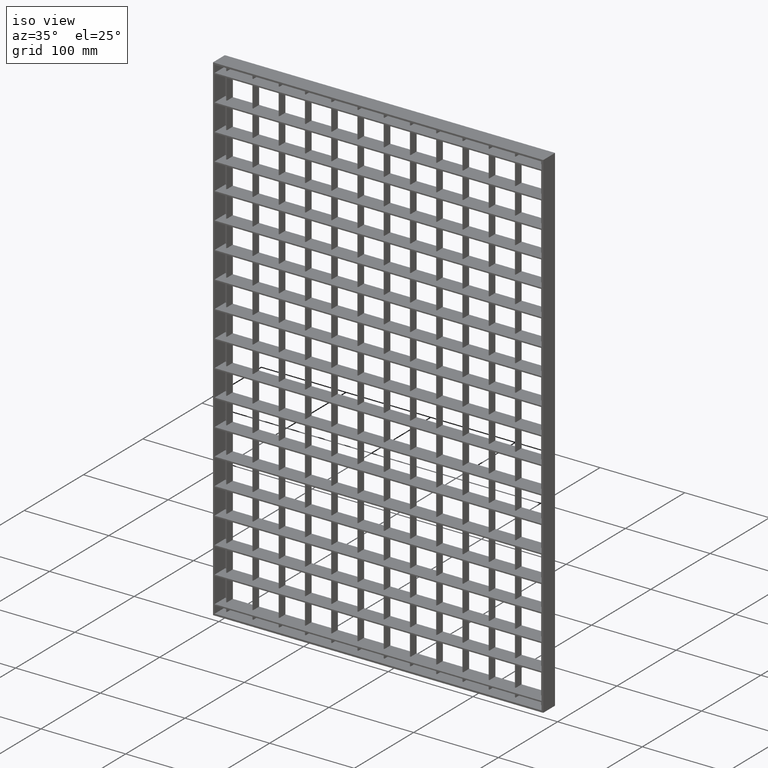
[diagram: clean part render]
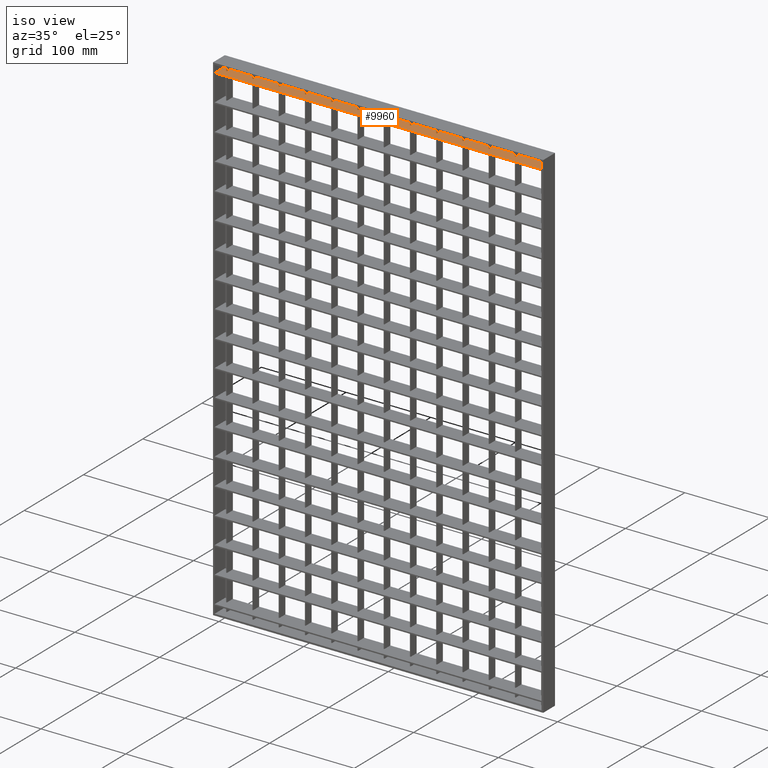
[diagram: same view with one face highlighted and labeled with its STEP entity id]
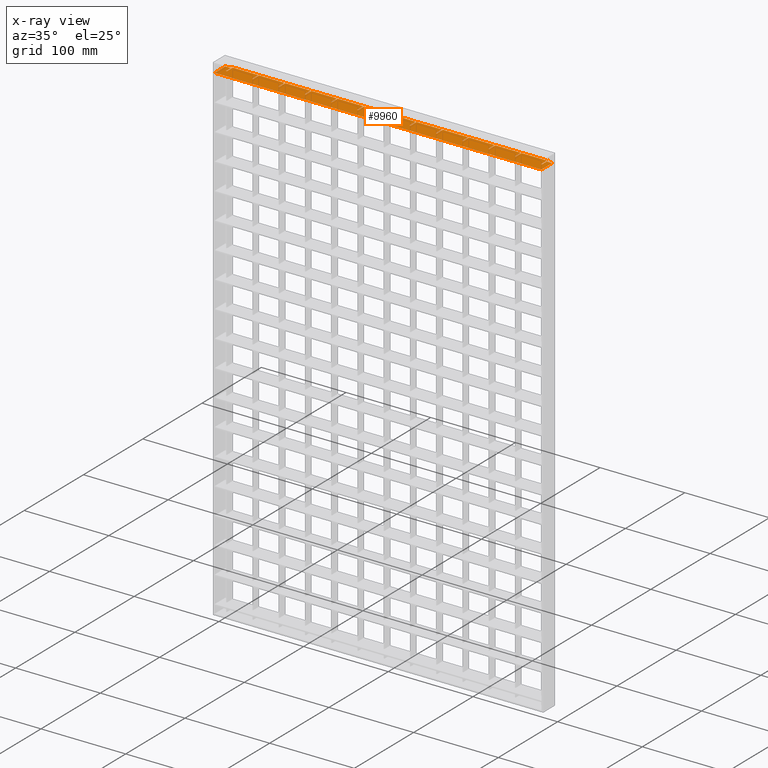
[diagram: x-ray of the same camera — body ghosted, the highlighted face saturated]
A machine part, iso view. The second image highlights one B-rep face of the part: STEP entity #9960.
The next image is the same camera in x-ray: the body ghosted, the highlighted face saturated — about 0% of this face is hidden behind the body in this view.
In plain terms, the highlighted planar face has unit normal (0, 0, 1).
Its self-contained STEP definition (entity closure, byte-faithful):
#109 = ORIENTED_EDGE ( 'NONE', *, *, #37872, .F. ) ;
#149 = CARTESIAN_POINT ( 'NONE',  ( 350.5000000000000600, 7.001226303889181300E-016, -10.75000000000036900 ) ) ;
#165 = VERTEX_POINT ( 'NONE', #1071 ) ;
#292 = EDGE_CURVE ( 'NONE', #25686, #23565, #673, .T. ) ;
#351 = DIRECTION ( 'NONE',  ( 0.0000000000000000000, -1.000000000000000000, 0.0000000000000000000 ) ) ;
#380 = EDGE_CURVE ( 'NONE', #26442, #22357, #1657, .T. ) ;
#557 = LINE ( 'NONE', #32736, #17046 ) ;
#673 = LINE ( 'NONE', #17179, #10888 ) ;
#729 = DIRECTION ( 'NONE',  ( 1.000000000000000000, 3.061616997868381200E-016, -0.0000000000000000000 ) ) ;
#732 = EDGE_CURVE ( 'NONE', #28731, #33677, #19066, .T. ) ;
#798 = EDGE_CURVE ( 'NONE', #15095, #38677, #4437, .T. ) ;
#899 = LINE ( 'NONE', #34717, #22705 ) ;
#964 = LINE ( 'NONE', #36871, #1449 ) ;
#1071 = CARTESIAN_POINT ( 'NONE',  ( 164.5000000000000000, 0.0000000000000000000, -10.75000000000036900 ) ) ;
#1139 = CARTESIAN_POINT ( 'NONE',  ( 408.0561711201316400, 10.00000000000012100, -10.75000000000036900 ) ) ;
#1159 = VECTOR ( 'NONE', #22642, 1000.000000000000000 ) ;
#1185 = LINE ( 'NONE', #2422, #7495 ) ;
#1271 = VECTOR ( 'NONE', #7424, 1000.000000000000000 ) ;
#1310 = CARTESIAN_POINT ( 'NONE',  ( 71.50000000000001400, 10.00000000000002000, -10.75000000000036900 ) ) ;
#1319 = CARTESIAN_POINT ( 'NONE',  ( 40.50000000000003600, 10.00000000000000900, -10.75000000000036900 ) ) ;
#1322 = CARTESIAN_POINT ( 'NONE',  ( 256.5000000000000600, -9.999999999999879200, -10.75000000000036900 ) ) ;
#1411 = EDGE_CURVE ( 'NONE', #31392, #11502, #34943, .T. ) ;
#1449 = VECTOR ( 'NONE', #21073, 1000.000000000000000 ) ;
#1451 = VERTEX_POINT ( 'NONE', #22361 ) ;
#1544 = VERTEX_POINT ( 'NONE', #32517 ) ;
#1588 = EDGE_CURVE ( 'NONE', #1544, #39421, #33493, .T. ) ;
#1657 = LINE ( 'NONE', #30410, #32657 ) ;
#1722 = ORIENTED_EDGE ( 'NONE', *, *, #22740, .F. ) ;
#1759 = EDGE_CURVE ( 'NONE', #34805, #13512, #13140, .T. ) ;
#1832 = LINE ( 'NONE', #39855, #30889 ) ;
#1926 = ORIENTED_EDGE ( 'NONE', *, *, #6521, .F. ) ;
#2040 = DIRECTION ( 'NONE',  ( -0.0000000000000000000, 1.000000000000000000, 0.0000000000000000000 ) ) ;
#2092 = VECTOR ( 'NONE', #20824, 1000.000000000000000 ) ;
#2234 = ORIENTED_EDGE ( 'NONE', *, *, #15915, .T. ) ;
#2239 = VECTOR ( 'NONE', #25596, 1000.000000000000000 ) ;
#2422 = CARTESIAN_POINT ( 'NONE',  ( 408.0561711201316400, 7.632783294297951200E-014, -10.75000000000036900 ) ) ;
#2434 = AXIS2_PLACEMENT_3D ( 'NONE', #33782, #36996, #18602 ) ;
#2567 = DIRECTION ( 'NONE',  ( 0.0000000000000000000, 1.000000000000000000, -0.0000000000000000000 ) ) ;
#2625 = VERTEX_POINT ( 'NONE', #4549 ) ;
#2657 = CARTESIAN_POINT ( 'NONE',  ( 164.5000000000000000, -9.999999999999879200, -10.75000000000036900 ) ) ;
#2664 = VERTEX_POINT ( 'NONE', #13475 ) ;
#2687 = CARTESIAN_POINT ( 'NONE',  ( 102.5000000000000300, 10.00000000000002800, -10.75000000000036900 ) ) ;
#2734 = CARTESIAN_POINT ( 'NONE',  ( 381.5000000000000600, 10.00000000000000200, -10.75000000000036900 ) ) ;
#2854 = VECTOR ( 'NONE', #15825, 1000.000000000000000 ) ;
#2878 = EDGE_CURVE ( 'NONE', #6752, #37761, #899, .T. ) ;
#3025 = CARTESIAN_POINT ( 'NONE',  ( 225.5000000000000300, -9.999999999999879200, -10.75000000000036900 ) ) ;
#3193 = CARTESIAN_POINT ( 'NONE',  ( 387.9999999999999400, 8.000000000000001800, -10.75000000000036900 ) ) ;
#3440 = ORIENTED_EDGE ( 'NONE', *, *, #380, .T. ) ;
#3489 = VERTEX_POINT ( 'NONE', #12207 ) ;
#3519 = ORIENTED_EDGE ( 'NONE', *, *, #732, .T. ) ;
#3557 = ORIENTED_EDGE ( 'NONE', *, *, #20865, .F. ) ;
#3615 = CARTESIAN_POINT ( 'NONE',  ( 7.999999999999996400, 10.00000000000000200, -10.75000000000036900 ) ) ;
#3733 = DIRECTION ( 'NONE',  ( -1.000000000000000000, -3.061616997868382200E-016, 0.0000000000000000000 ) ) ;
#3742 = DIRECTION ( 'NONE',  ( -1.000000000000000000, 0.0000000000000000000, 0.0000000000000000000 ) ) ;
#3891 = LINE ( 'NONE', #24891, #27652 ) ;
#3920 = LINE ( 'NONE', #33435, #25246 ) ;
#4006 = EDGE_CURVE ( 'NONE', #8032, #9717, #16286, .T. ) ;
#4145 = CARTESIAN_POINT ( 'NONE',  ( 408.0561711201316400, 6.765421556309547700E-014, -10.75000000000036900 ) ) ;
#4333 = CARTESIAN_POINT ( 'NONE',  ( 101.5000000000000000, 10.00000000000000200, -10.75000000000036900 ) ) ;
#4345 = CARTESIAN_POINT ( 'NONE',  ( 318.5000000000000000, 10.00000000000009400, -10.75000000000036900 ) ) ;
#4437 = LINE ( 'NONE', #28352, #25753 ) ;
#4512 = LINE ( 'NONE', #14355, #25312 ) ;
#4549 = CARTESIAN_POINT ( 'NONE',  ( 380.5000000000000600, 10.00000000000011400, -10.75000000000036900 ) ) ;
#4650 = DIRECTION ( 'NONE',  ( -0.0000000000000000000, -1.000000000000000000, 0.0000000000000000000 ) ) ;
#4658 = ORIENTED_EDGE ( 'NONE', *, *, #33958, .T. ) ;
#4659 = LINE ( 'NONE', #7324, #2239 ) ;
#4664 = LINE ( 'NONE', #32516, #20162 ) ;
#4673 = EDGE_CURVE ( 'NONE', #8410, #35717, #17083, .T. ) ;
#4719 = CARTESIAN_POINT ( 'NONE',  ( 408.0561711201316400, -3.469446951953614200E-014, -10.75000000000036900 ) ) ;
#4828 = ORIENTED_EDGE ( 'NONE', *, *, #4673, .T. ) ;
#4992 = ORIENTED_EDGE ( 'NONE', *, *, #27998, .F. ) ;
#5287 = CARTESIAN_POINT ( 'NONE',  ( 195.5000000000000000, 0.0000000000000000000, -10.75000000000036900 ) ) ;
#5462 = VECTOR ( 'NONE', #29913, 1000.000000000000000 ) ;
#5473 = VECTOR ( 'NONE', #39093, 1000.000000000000000 ) ;
#5550 = VECTOR ( 'NONE', #26364, 1000.000000000000000 ) ;
#5728 = ORIENTED_EDGE ( 'NONE', *, *, #4006, .T. ) ;
#5748 = CARTESIAN_POINT ( 'NONE',  ( 288.5000000000001100, 10.00000000000000200, -10.75000000000036900 ) ) ;
#6208 = DIRECTION ( 'NONE',  ( 1.000000000000000000, 3.061616997868381200E-016, -0.0000000000000000000 ) ) ;
#6231 = EDGE_CURVE ( 'NONE', #8050, #25490, #30787, .T. ) ;
#6263 = LINE ( 'NONE', #10116, #28013 ) ;
#6329 = CARTESIAN_POINT ( 'NONE',  ( 101.4999999999999900, 1.554032748440066200E-015, -10.75000000000036900 ) ) ;
#6519 = CARTESIAN_POINT ( 'NONE',  ( 71.50000000000001400, -9.999999999999879200, -10.75000000000036900 ) ) ;
#6521 = EDGE_CURVE ( 'NONE', #2664, #38302, #35644, .T. ) ;
#6662 = VECTOR ( 'NONE', #36798, 1000.000000000000000 ) ;
#6712 = EDGE_CURVE ( 'NONE', #3489, #34122, #15741, .T. ) ;
#6752 = VERTEX_POINT ( 'NONE', #32312 ) ;
#6756 = EDGE_CURVE ( 'NONE', #8032, #28773, #27862, .T. ) ;
#6941 = LINE ( 'NONE', #19979, #26808 ) ;
#7124 = ORIENTED_EDGE ( 'NONE', *, *, #292, .T. ) ;
#7184 = VERTEX_POINT ( 'NONE', #23241 ) ;
#7324 = CARTESIAN_POINT ( 'NONE',  ( 408.0561711201316400, 10.00000000000012100, -10.75000000000036900 ) ) ;
#7382 = DIRECTION ( 'NONE',  ( -1.000000000000000000, -3.061616997868382200E-016, 0.0000000000000000000 ) ) ;
#7422 = CARTESIAN_POINT ( 'NONE',  ( 408.0561711201316400, 10.00000000000012100, -10.75000000000036900 ) ) ;
#7424 = DIRECTION ( 'NONE',  ( 0.0000000000000000000, -1.000000000000000000, 0.0000000000000000000 ) ) ;
#7436 = LINE ( 'NONE', #36481, #10353 ) ;
#7484 = LINE ( 'NONE', #16454, #13265 ) ;
#7492 = CARTESIAN_POINT ( 'NONE',  ( 7.999999999999996400, 8.000000000000001800, -10.75000000000036900 ) ) ;
#7495 = VECTOR ( 'NONE', #14728, 1000.000000000000000 ) ;
#7547 = DIRECTION ( 'NONE',  ( -1.000000000000000000, -3.061616997868382200E-016, 0.0000000000000000000 ) ) ;
#7694 = EDGE_CURVE ( 'NONE', #7732, #9544, #38921, .T. ) ;
#7732 = VERTEX_POINT ( 'NONE', #22505 ) ;
#7782 = VECTOR ( 'NONE', #7382, 1000.000000000000000 ) ;
#7848 = CARTESIAN_POINT ( 'NONE',  ( 102.4999999999999900, 0.0000000000000000000, -10.75000000000036900 ) ) ;
#8032 = VERTEX_POINT ( 'NONE', #4333 ) ;
#8050 = VERTEX_POINT ( 'NONE', #7848 ) ;
#8146 = LINE ( 'NONE', #7422, #26043 ) ;
#8245 = EDGE_CURVE ( 'NONE', #34805, #35431, #11325, .T. ) ;
#8364 = EDGE_CURVE ( 'NONE', #2625, #11458, #7436, .T. ) ;
#8410 = VERTEX_POINT ( 'NONE', #22003 ) ;
#8456 = ORIENTED_EDGE ( 'NONE', *, *, #24021, .F. ) ;
#8486 = VERTEX_POINT ( 'NONE', #22136 ) ;
#8536 = CARTESIAN_POINT ( 'NONE',  ( 195.5000000000000000, 10.00000000000005500, -10.75000000000036900 ) ) ;
#8552 = CARTESIAN_POINT ( 'NONE',  ( 2.000000000000003600, 8.000000000000001800, -10.75000000000036900 ) ) ;
#8567 = VECTOR ( 'NONE', #19448, 1000.000000000000000 ) ;
#8676 = EDGE_CURVE ( 'NONE', #23059, #7184, #20487, .T. ) ;
#8729 = CARTESIAN_POINT ( 'NONE',  ( 225.5000000000000300, 1.006284330175756500E-015, -10.75000000000036900 ) ) ;
#8732 = FACE_OUTER_BOUND ( 'NONE', #18146, .T. ) ;
#8831 = CARTESIAN_POINT ( 'NONE',  ( 132.5000000000000000, -9.999999999999879200, -10.75000000000036900 ) ) ;
#8962 = CARTESIAN_POINT ( 'NONE',  ( 9.500000000000008900, -9.999999999999879200, -10.75000000000036900 ) ) ;
#9254 = EDGE_CURVE ( 'NONE', #23274, #35938, #3920, .T. ) ;
#9303 = PLANE ( 'NONE',  #2434 ) ;
#9351 = VECTOR ( 'NONE', #12584, 1000.000000000000000 ) ;
#9422 = DIRECTION ( 'NONE',  ( 0.0000000000000000000, -1.000000000000000000, 0.0000000000000000000 ) ) ;
#9430 = CARTESIAN_POINT ( 'NONE',  ( 9.500000000000008900, 0.0000000000000000000, -10.75000000000036900 ) ) ;
#9450 = ORIENTED_EDGE ( 'NONE', *, *, #7694, .T. ) ;
#9508 = ORIENTED_EDGE ( 'NONE', *, *, #15801, .T. ) ;
#9544 = VERTEX_POINT ( 'NONE', #34870 ) ;
#9620 = CARTESIAN_POINT ( 'NONE',  ( 319.5000000000000000, 10.00000000000000200, -10.75000000000036900 ) ) ;
#9685 = ORIENTED_EDGE ( 'NONE', *, *, #32531, .T. ) ;
#9705 = LINE ( 'NONE', #3025, #13098 ) ;
#9717 = VERTEX_POINT ( 'NONE', #1310 ) ;
#9742 = CARTESIAN_POINT ( 'NONE',  ( 226.5000000000000300, 7.001226303889181300E-016, -10.75000000000036900 ) ) ;
#9947 = DIRECTION ( 'NONE',  ( -0.0000000000000000000, 1.000000000000000000, 0.0000000000000000000 ) ) ;
#9960 = ADVANCED_FACE ( 'NONE', ( #8732 ), #9303, .T. ) ;
#10071 = LINE ( 'NONE', #12295, #28416 ) ;
#10116 = CARTESIAN_POINT ( 'NONE',  ( 408.0561711201316400, 8.500145032286354800E-014, -10.75000000000036900 ) ) ;
#10283 = ORIENTED_EDGE ( 'NONE', *, *, #11516, .T. ) ;
#10333 = ORIENTED_EDGE ( 'NONE', *, *, #18586, .T. ) ;
#10353 = VECTOR ( 'NONE', #27278, 1000.000000000000000 ) ;
#10385 = DIRECTION ( 'NONE',  ( -0.0000000000000000000, 1.000000000000000000, 0.0000000000000000000 ) ) ;
#10415 = ORIENTED_EDGE ( 'NONE', *, *, #21695, .F. ) ;
#10524 = CARTESIAN_POINT ( 'NONE',  ( 408.0561711201316400, -1.561251128379126400E-014, -10.75000000000036900 ) ) ;
#10609 = DIRECTION ( 'NONE',  ( -1.000000000000000000, 3.061616997868381200E-016, 0.0000000000000000000 ) ) ;
#10888 = VECTOR ( 'NONE', #39339, 1000.000000000000000 ) ;
#11307 = CARTESIAN_POINT ( 'NONE',  ( 8.500000000000007100, 8.365702838930499200E-016, -10.75000000000036900 ) ) ;
#11325 = LINE ( 'NONE', #35826, #2092 ) ;
#11342 = LINE ( 'NONE', #1322, #18115 ) ;
#11458 = VERTEX_POINT ( 'NONE', #25971 ) ;
#11502 = VERTEX_POINT ( 'NONE', #26097 ) ;
#11516 = EDGE_CURVE ( 'NONE', #37437, #33024, #8146, .T. ) ;
#11624 = DIRECTION ( 'NONE',  ( -1.000000000000000000, -3.061616997868382200E-016, 0.0000000000000000000 ) ) ;
#11729 = CARTESIAN_POINT ( 'NONE',  ( 408.0561711201316400, 10.00000000000012100, -10.75000000000036900 ) ) ;
#11754 = CARTESIAN_POINT ( 'NONE',  ( 7.999999999999996400, 8.000000000000001800, -10.75000000000036900 ) ) ;
#11924 = LINE ( 'NONE', #30751, #25982 ) ;
#12095 = DIRECTION ( 'NONE',  ( -1.000000000000000000, -3.061616997868382200E-016, 0.0000000000000000000 ) ) ;
#12207 = CARTESIAN_POINT ( 'NONE',  ( 388.0000000000000600, -10.00000000000000400, -10.75000000000036900 ) ) ;
#12295 = CARTESIAN_POINT ( 'NONE',  ( 408.0561711201316400, 1.144917494144692700E-013, -10.75000000000036900 ) ) ;
#12557 = CARTESIAN_POINT ( 'NONE',  ( 163.5000000000000000, 1.454099899479157900E-015, -10.75000000000036900 ) ) ;
#12584 = DIRECTION ( 'NONE',  ( -0.0000000000000000000, 1.000000000000000000, 0.0000000000000000000 ) ) ;
#12736 = VERTEX_POINT ( 'NONE', #32982 ) ;
#12746 = EDGE_CURVE ( 'NONE', #38553, #1451, #32195, .T. ) ;
#12800 = EDGE_CURVE ( 'NONE', #165, #35431, #15710, .T. ) ;
#12803 = LINE ( 'NONE', #18185, #35076 ) ;
#13020 = DIRECTION ( 'NONE',  ( 0.0000000000000000000, -1.000000000000000000, 0.0000000000000000000 ) ) ;
#13098 = VECTOR ( 'NONE', #9947, 1000.000000000000000 ) ;
#13125 = CARTESIAN_POINT ( 'NONE',  ( 382.0000000000000600, 8.000000000000001800, -10.75000000000036900 ) ) ;
#13140 = LINE ( 'NONE', #21267, #25724 ) ;
#13196 = CARTESIAN_POINT ( 'NONE',  ( 408.0561711201316400, 9.540979117872439000E-014, -10.75000000000036900 ) ) ;
#13265 = VECTOR ( 'NONE', #22688, 1000.000000000000000 ) ;
#13290 = VERTEX_POINT ( 'NONE', #8729 ) ;
#13356 = LINE ( 'NONE', #19050, #25010 ) ;
#13358 = CARTESIAN_POINT ( 'NONE',  ( 382.0000000000000600, 10.00000000000000400, -10.75000000000036900 ) ) ;
#13475 = CARTESIAN_POINT ( 'NONE',  ( 8.500000000000007100, 10.00000000000000200, -10.75000000000036900 ) ) ;
#13512 = VERTEX_POINT ( 'NONE', #18301 ) ;
#13566 = EDGE_CURVE ( 'NONE', #11458, #33350, #39360, .T. ) ;
#13857 = EDGE_CURVE ( 'NONE', #36915, #38553, #4512, .T. ) ;
#13957 = VERTEX_POINT ( 'NONE', #5287 ) ;
#14210 = EDGE_CURVE ( 'NONE', #30986, #6752, #15585, .T. ) ;
#14355 = CARTESIAN_POINT ( 'NONE',  ( 381.5000000000000600, -9.999999999999879200, -10.75000000000036900 ) ) ;
#14453 = CARTESIAN_POINT ( 'NONE',  ( 288.5000000000001100, 7.001226303889181300E-016, -10.75000000000036900 ) ) ;
#14600 = VECTOR ( 'NONE', #10609, 1000.000000000000000 ) ;
#14627 = DIRECTION ( 'NONE',  ( 0.0000000000000000000, -1.000000000000000000, 0.0000000000000000000 ) ) ;
#14728 = DIRECTION ( 'NONE',  ( 1.000000000000000000, 3.061616997868381200E-016, -0.0000000000000000000 ) ) ;
#14859 = EDGE_CURVE ( 'NONE', #33677, #34122, #557, .T. ) ;
#15054 = VECTOR ( 'NONE', #34196, 1000.000000000000000 ) ;
#15095 = VERTEX_POINT ( 'NONE', #15505 ) ;
#15113 = ORIENTED_EDGE ( 'NONE', *, *, #2878, .T. ) ;
#15293 = VERTEX_POINT ( 'NONE', #12557 ) ;
#15452 = VECTOR ( 'NONE', #22650, 1000.000000000000000 ) ;
#15459 = ORIENTED_EDGE ( 'NONE', *, *, #25589, .T. ) ;
#15505 = CARTESIAN_POINT ( 'NONE',  ( 40.50000000000003600, 0.0000000000000000000, -10.75000000000036900 ) ) ;
#15509 = ORIENTED_EDGE ( 'NONE', *, *, #19070, .T. ) ;
#15585 = LINE ( 'NONE', #30844, #9351 ) ;
#15618 = ORIENTED_EDGE ( 'NONE', *, *, #19915, .T. ) ;
#15710 = LINE ( 'NONE', #2657, #36065 ) ;
#15741 = LINE ( 'NONE', #35159, #25435 ) ;
#15801 = EDGE_CURVE ( 'NONE', #9544, #31410, #29017, .T. ) ;
#15825 = DIRECTION ( 'NONE',  ( -0.0000000000000000000, 1.000000000000000000, 0.0000000000000000000 ) ) ;
#15915 = EDGE_CURVE ( 'NONE', #13290, #8410, #9705, .T. ) ;
#15945 = ORIENTED_EDGE ( 'NONE', *, *, #20262, .T. ) ;
#16286 = LINE ( 'NONE', #27038, #23071 ) ;
#16334 = VECTOR ( 'NONE', #14627, 1000.000000000000000 ) ;
#16382 = EDGE_CURVE ( 'NONE', #26207, #12736, #26076, .T. ) ;
#16452 = CARTESIAN_POINT ( 'NONE',  ( 408.0561711201316400, 1.040834085586084300E-013, -10.75000000000036900 ) ) ;
#16454 = CARTESIAN_POINT ( 'NONE',  ( 195.5000000000000000, -9.999999999999879200, -10.75000000000036900 ) ) ;
#16737 = DIRECTION ( 'NONE',  ( -1.000000000000000000, -3.061616997868382200E-016, 0.0000000000000000000 ) ) ;
#17046 = VECTOR ( 'NONE', #26388, 1000.000000000000000 ) ;
#17083 = LINE ( 'NONE', #11729, #28197 ) ;
#17179 = CARTESIAN_POINT ( 'NONE',  ( 408.0561711201316400, -2.602085213965210600E-014, -10.75000000000036900 ) ) ;
#17319 = CARTESIAN_POINT ( 'NONE',  ( 194.5000000000000000, 10.00000000000000200, -10.75000000000036900 ) ) ;
#17337 = ORIENTED_EDGE ( 'NONE', *, *, #1759, .F. ) ;
#17347 = CARTESIAN_POINT ( 'NONE',  ( 39.50000000000003600, -9.999999999999879200, -10.75000000000036900 ) ) ;
#17636 = CARTESIAN_POINT ( 'NONE',  ( 39.49999999999997900, 1.653965597400974600E-015, -10.75000000000036900 ) ) ;
#17800 = CARTESIAN_POINT ( 'NONE',  ( 287.5000000000001100, 10.00000000000008500, -10.75000000000036900 ) ) ;
#17982 = DIRECTION ( 'NONE',  ( 0.0000000000000000000, -1.000000000000000000, 0.0000000000000000000 ) ) ;
#18115 = VECTOR ( 'NONE', #32322, 1000.000000000000000 ) ;
#18146 = EDGE_LOOP ( 'NONE', ( #30746, #37229, #38465, #9685, #39218, #25621, #38825, #32317, #15113, #4658, #7124, #24931, #38030, #3440, #10333, #15509, #21785, #15459, #19377, #36605, #9450, #9508, #36627, #2234, #4828, #109, #1722, #17337, #21228, #33164, #38647, #8456, #10283, #32772, #3557, #35137, #15945, #25350, #38001, #36593, #5728, #24982, #19217, #10415, #15618, #35084, #35591, #26115, #27894, #34575, #23427, #1926, #20729, #22924, #3519, #23756, #29155, #4992, #38705, #30676 ) ) ;
#18185 = CARTESIAN_POINT ( 'NONE',  ( 408.0561711201316400, -5.377642775528102000E-014, -10.75000000000036900 ) ) ;
#18301 = CARTESIAN_POINT ( 'NONE',  ( 194.5000000000000000, 2.271495212987107000E-015, -10.75000000000036900 ) ) ;
#18586 = EDGE_CURVE ( 'NONE', #22357, #34327, #29698, .T. ) ;
#18602 = DIRECTION ( 'NONE',  ( 1.000000000000000000, 0.0000000000000000000, -0.0000000000000000000 ) ) ;
#18656 = VECTOR ( 'NONE', #2040, 1000.000000000000000 ) ;
#19050 = CARTESIAN_POINT ( 'NONE',  ( 257.5000000000000600, -9.999999999999879200, -10.75000000000036900 ) ) ;
#19066 = LINE ( 'NONE', #34998, #34552 ) ;
#19068 = CARTESIAN_POINT ( 'NONE',  ( 381.5000000000000600, 7.001226303889181300E-016, -10.75000000000036900 ) ) ;
#19070 = EDGE_CURVE ( 'NONE', #34327, #23059, #6941, .T. ) ;
#19194 = EDGE_CURVE ( 'NONE', #38302, #26207, #21912, .T. ) ;
#19198 = EDGE_CURVE ( 'NONE', #21324, #30251, #26768, .T. ) ;
#19217 = ORIENTED_EDGE ( 'NONE', *, *, #25730, .F. ) ;
#19377 = ORIENTED_EDGE ( 'NONE', *, *, #1411, .T. ) ;
#19448 = DIRECTION ( 'NONE',  ( 1.000000000000000000, 3.061616997868381200E-016, -0.0000000000000000000 ) ) ;
#19836 = LINE ( 'NONE', #10524, #30970 ) ;
#19901 = VERTEX_POINT ( 'NONE', #21999 ) ;
#19915 = EDGE_CURVE ( 'NONE', #28565, #38677, #32508, .T. ) ;
#19979 = CARTESIAN_POINT ( 'NONE',  ( 287.5000000000001100, -9.999999999999879200, -10.75000000000036900 ) ) ;
#19993 = DIRECTION ( 'NONE',  ( -0.0000000000000000000, 1.000000000000000000, 0.0000000000000000000 ) ) ;
#20162 = VECTOR ( 'NONE', #23325, 1000.000000000000000 ) ;
#20262 = EDGE_CURVE ( 'NONE', #21324, #25490, #30507, .T. ) ;
#20319 = DIRECTION ( 'NONE',  ( 0.0000000000000000000, -1.000000000000000000, 0.0000000000000000000 ) ) ;
#20487 = LINE ( 'NONE', #32787, #5462 ) ;
#20724 = LINE ( 'NONE', #32908, #16334 ) ;
#20729 = ORIENTED_EDGE ( 'NONE', *, *, #29663, .T. ) ;
#20824 = DIRECTION ( 'NONE',  ( -1.000000000000000000, -3.061616997868382200E-016, 0.0000000000000000000 ) ) ;
#20865 = EDGE_CURVE ( 'NONE', #30251, #30673, #6263, .T. ) ;
#21073 = DIRECTION ( 'NONE',  ( -0.0000000000000000000, 1.000000000000000000, 0.0000000000000000000 ) ) ;
#21228 = ORIENTED_EDGE ( 'NONE', *, *, #8245, .T. ) ;
#21267 = CARTESIAN_POINT ( 'NONE',  ( 194.5000000000000000, -9.999999999999879200, -10.75000000000036900 ) ) ;
#21324 = VERTEX_POINT ( 'NONE', #27645 ) ;
#21539 = EDGE_CURVE ( 'NONE', #37671, #28731, #23120, .T. ) ;
#21579 = LINE ( 'NONE', #32902, #18656 ) ;
#21695 = EDGE_CURVE ( 'NONE', #28565, #8486, #20724, .T. ) ;
#21785 = ORIENTED_EDGE ( 'NONE', *, *, #8676, .T. ) ;
#21830 = CARTESIAN_POINT ( 'NONE',  ( 226.5000000000000300, -9.999999999999879200, -10.75000000000036900 ) ) ;
#21881 = VECTOR ( 'NONE', #31739, 1000.000000000000000 ) ;
#21912 = LINE ( 'NONE', #36392, #5473 ) ;
#21999 = CARTESIAN_POINT ( 'NONE',  ( 71.50000000000001400, 0.0000000000000000000, -10.75000000000036900 ) ) ;
#22003 = CARTESIAN_POINT ( 'NONE',  ( 225.5000000000000300, 10.00000000000006600, -10.75000000000036900 ) ) ;
#22080 = CARTESIAN_POINT ( 'NONE',  ( 350.5000000000000600, -9.999999999999879200, -10.75000000000036900 ) ) ;
#22136 = CARTESIAN_POINT ( 'NONE',  ( 70.50000000000000000, 7.366374349321292100E-016, -10.75000000000036900 ) ) ;
#22357 = VERTEX_POINT ( 'NONE', #14453 ) ;
#22361 = CARTESIAN_POINT ( 'NONE',  ( 380.5000000000000600, 1.006284330175756500E-015, -10.75000000000036900 ) ) ;
#22505 = CARTESIAN_POINT ( 'NONE',  ( 256.5000000000000600, 10.00000000000007500, -10.75000000000036900 ) ) ;
#22642 = DIRECTION ( 'NONE',  ( -1.000000000000000000, -3.061616997868382200E-016, 0.0000000000000000000 ) ) ;
#22650 = DIRECTION ( 'NONE',  ( 1.000000000000000000, 3.061616997868381200E-016, -0.0000000000000000000 ) ) ;
#22688 = DIRECTION ( 'NONE',  ( -0.0000000000000000000, 1.000000000000000000, 0.0000000000000000000 ) ) ;
#22705 = VECTOR ( 'NONE', #3733, 1000.000000000000000 ) ;
#22740 = EDGE_CURVE ( 'NONE', #13512, #13957, #33038, .T. ) ;
#22745 = LINE ( 'NONE', #38085, #29001 ) ;
#22772 = CARTESIAN_POINT ( 'NONE',  ( 408.0561711201316400, -4.510281037539698400E-014, -10.75000000000036900 ) ) ;
#22841 = DIRECTION ( 'NONE',  ( -1.000000000000000000, -3.061616997868382200E-016, 0.0000000000000000000 ) ) ;
#22924 = ORIENTED_EDGE ( 'NONE', *, *, #21539, .T. ) ;
#23059 = VERTEX_POINT ( 'NONE', #17800 ) ;
#23065 = VECTOR ( 'NONE', #32105, 1000.000000000000000 ) ;
#23071 = VECTOR ( 'NONE', #11624, 1000.000000000000000 ) ;
#23120 = LINE ( 'NONE', #7492, #32315 ) ;
#23241 = CARTESIAN_POINT ( 'NONE',  ( 257.5000000000000600, 10.00000000000000200, -10.75000000000036900 ) ) ;
#23274 = VERTEX_POINT ( 'NONE', #13125 ) ;
#23325 = DIRECTION ( 'NONE',  ( -1.000000000000000000, 0.0000000000000000000, 0.0000000000000000000 ) ) ;
#23427 = ORIENTED_EDGE ( 'NONE', *, *, #19194, .F. ) ;
#23565 = VERTEX_POINT ( 'NONE', #24205 ) ;
#23756 = ORIENTED_EDGE ( 'NONE', *, *, #14859, .T. ) ;
#23766 = CARTESIAN_POINT ( 'NONE',  ( 287.5000000000001100, 1.006284330175756500E-015, -10.75000000000036900 ) ) ;
#23793 = CARTESIAN_POINT ( 'NONE',  ( 70.50000000000000000, 10.00000000000000200, -10.75000000000036900 ) ) ;
#24001 = EDGE_CURVE ( 'NONE', #33350, #30986, #19836, .T. ) ;
#24021 = EDGE_CURVE ( 'NONE', #37437, #15293, #22745, .T. ) ;
#24033 = CARTESIAN_POINT ( 'NONE',  ( 133.5000000000000000, 0.0000000000000000000, -10.75000000000036900 ) ) ;
#24205 = CARTESIAN_POINT ( 'NONE',  ( 318.5000000000000000, 1.006284330175756500E-015, -10.75000000000036900 ) ) ;
#24672 = CARTESIAN_POINT ( 'NONE',  ( 102.4999999999999900, -9.999999999999879200, -10.75000000000036900 ) ) ;
#24719 = CARTESIAN_POINT ( 'NONE',  ( 408.0561711201316400, 10.00000000000012100, -10.75000000000036900 ) ) ;
#24891 = CARTESIAN_POINT ( 'NONE',  ( 319.5000000000000000, -9.999999999999879200, -10.75000000000036900 ) ) ;
#24931 = ORIENTED_EDGE ( 'NONE', *, *, #40096, .T. ) ;
#24946 = DIRECTION ( 'NONE',  ( -0.0000000000000000000, 1.000000000000000000, 0.0000000000000000000 ) ) ;
#24982 = ORIENTED_EDGE ( 'NONE', *, *, #35265, .F. ) ;
#25010 = VECTOR ( 'NONE', #351, 1000.000000000000000 ) ;
#25246 = VECTOR ( 'NONE', #2567, 1000.000000000000000 ) ;
#25312 = VECTOR ( 'NONE', #39086, 1000.000000000000000 ) ;
#25350 = ORIENTED_EDGE ( 'NONE', *, *, #6231, .F. ) ;
#25435 = VECTOR ( 'NONE', #22841, 1000.000000000000000 ) ;
#25490 = VERTEX_POINT ( 'NONE', #2687 ) ;
#25589 = EDGE_CURVE ( 'NONE', #7184, #31392, #13356, .T. ) ;
#25596 = DIRECTION ( 'NONE',  ( -1.000000000000000000, -3.061616997868382200E-016, 0.0000000000000000000 ) ) ;
#25621 = ORIENTED_EDGE ( 'NONE', *, *, #13566, .T. ) ;
#25686 = VERTEX_POINT ( 'NONE', #37964 ) ;
#25722 = CARTESIAN_POINT ( 'NONE',  ( 349.5000000000000600, 1.006284330175756500E-015, -10.75000000000036900 ) ) ;
#25724 = VECTOR ( 'NONE', #30995, 1000.000000000000000 ) ;
#25730 = EDGE_CURVE ( 'NONE', #8486, #19901, #38521, .T. ) ;
#25753 = VECTOR ( 'NONE', #19993, 1000.000000000000000 ) ;
#25761 = CARTESIAN_POINT ( 'NONE',  ( 408.0561711201316400, 10.00000000000012100, -10.75000000000036900 ) ) ;
#25971 = CARTESIAN_POINT ( 'NONE',  ( 350.5000000000000600, 10.00000000000000200, -10.75000000000036900 ) ) ;
#25976 = CARTESIAN_POINT ( 'NONE',  ( 101.4999999999999900, -9.999999999999879200, -10.75000000000036900 ) ) ;
#25982 = VECTOR ( 'NONE', #12095, 1000.000000000000000 ) ;
#26043 = VECTOR ( 'NONE', #16737, 1000.000000000000000 ) ;
#26076 = LINE ( 'NONE', #8962, #6662 ) ;
#26092 = CARTESIAN_POINT ( 'NONE',  ( 2.000000000000001800, -10.00000000000000400, -10.75000000000036900 ) ) ;
#26097 = CARTESIAN_POINT ( 'NONE',  ( 256.5000000000000600, 1.006284330175756500E-015, -10.75000000000036900 ) ) ;
#26115 = ORIENTED_EDGE ( 'NONE', *, *, #1588, .F. ) ;
#26207 = VERTEX_POINT ( 'NONE', #9430 ) ;
#26216 = CARTESIAN_POINT ( 'NONE',  ( 408.0561711201316400, 10.00000000000012100, -10.75000000000036900 ) ) ;
#26364 = DIRECTION ( 'NONE',  ( -1.000000000000000000, 3.061616997868381200E-016, 0.0000000000000000000 ) ) ;
#26388 = DIRECTION ( 'NONE',  ( -0.0000000000000000000, -1.000000000000000000, 0.0000000000000000000 ) ) ;
#26429 = EDGE_CURVE ( 'NONE', #31410, #13290, #12803, .T. ) ;
#26442 = VERTEX_POINT ( 'NONE', #5748 ) ;
#26604 = EDGE_CURVE ( 'NONE', #11502, #7732, #11342, .T. ) ;
#26768 = LINE ( 'NONE', #8831, #36929 ) ;
#26808 = VECTOR ( 'NONE', #10385, 1000.000000000000000 ) ;
#27038 = CARTESIAN_POINT ( 'NONE',  ( 408.0561711201316400, 10.00000000000012100, -10.75000000000036900 ) ) ;
#27278 = DIRECTION ( 'NONE',  ( -1.000000000000000000, -3.061616997868382200E-016, 0.0000000000000000000 ) ) ;
#27393 = VECTOR ( 'NONE', #24946, 1000.000000000000000 ) ;
#27406 = DIRECTION ( 'NONE',  ( -1.000000000000000000, 3.061616997868381200E-016, 0.0000000000000000000 ) ) ;
#27527 = VECTOR ( 'NONE', #20319, 1000.000000000000000 ) ;
#27576 = DIRECTION ( 'NONE',  ( 0.0000000000000000000, -1.000000000000000000, 0.0000000000000000000 ) ) ;
#27645 = CARTESIAN_POINT ( 'NONE',  ( 132.5000000000000000, 10.00000000000000200, -10.75000000000036900 ) ) ;
#27652 = VECTOR ( 'NONE', #27704, 1000.000000000000000 ) ;
#27704 = DIRECTION ( 'NONE',  ( 0.0000000000000000000, -1.000000000000000000, 0.0000000000000000000 ) ) ;
#27862 = LINE ( 'NONE', #25976, #1271 ) ;
#27894 = ORIENTED_EDGE ( 'NONE', *, *, #36610, .T. ) ;
#27998 = EDGE_CURVE ( 'NONE', #39079, #3489, #35775, .T. ) ;
#28013 = VECTOR ( 'NONE', #729, 1000.000000000000000 ) ;
#28197 = VECTOR ( 'NONE', #29967, 1000.000000000000000 ) ;
#28210 = VECTOR ( 'NONE', #13020, 1000.000000000000000 ) ;
#28253 = VECTOR ( 'NONE', #7547, 1000.000000000000000 ) ;
#28352 = CARTESIAN_POINT ( 'NONE',  ( 40.50000000000003600, -9.999999999999879200, -10.75000000000036900 ) ) ;
#28416 = VECTOR ( 'NONE', #6208, 1000.000000000000000 ) ;
#28565 = VERTEX_POINT ( 'NONE', #23793 ) ;
#28695 = EDGE_CURVE ( 'NONE', #30673, #33024, #1832, .T. ) ;
#28731 = VERTEX_POINT ( 'NONE', #11754 ) ;
#28773 = VERTEX_POINT ( 'NONE', #6329 ) ;
#28823 = EDGE_CURVE ( 'NONE', #39421, #15095, #10071, .T. ) ;
#28881 = DIRECTION ( 'NONE',  ( 0.0000000000000000000, -1.000000000000000000, 0.0000000000000000000 ) ) ;
#28986 = LINE ( 'NONE', #13196, #15452 ) ;
#29001 = VECTOR ( 'NONE', #28881, 1000.000000000000000 ) ;
#29009 = DIRECTION ( 'NONE',  ( -1.000000000000000000, 3.061616997868381200E-016, 0.0000000000000000000 ) ) ;
#29017 = LINE ( 'NONE', #21830, #35339 ) ;
#29155 = ORIENTED_EDGE ( 'NONE', *, *, #6712, .F. ) ;
#29379 = DIRECTION ( 'NONE',  ( 0.0000000000000000000, -1.000000000000000000, 0.0000000000000000000 ) ) ;
#29663 = EDGE_CURVE ( 'NONE', #2664, #37671, #4659, .T. ) ;
#29698 = LINE ( 'NONE', #4719, #5550 ) ;
#29699 = LINE ( 'NONE', #26216, #28253 ) ;
#29913 = DIRECTION ( 'NONE',  ( -1.000000000000000000, -3.061616997868382200E-016, 0.0000000000000000000 ) ) ;
#29967 = DIRECTION ( 'NONE',  ( -1.000000000000000000, -3.061616997868382200E-016, 0.0000000000000000000 ) ) ;
#30251 = VERTEX_POINT ( 'NONE', #31225 ) ;
#30386 = DIRECTION ( 'NONE',  ( -0.0000000000000000000, 1.000000000000000000, 0.0000000000000000000 ) ) ;
#30410 = CARTESIAN_POINT ( 'NONE',  ( 288.5000000000001100, -9.999999999999879200, -10.75000000000036900 ) ) ;
#30507 = LINE ( 'NONE', #1139, #7782 ) ;
#30519 = CARTESIAN_POINT ( 'NONE',  ( 408.0561711201316400, -6.938893903907228400E-015, -10.75000000000036900 ) ) ;
#30673 = VERTEX_POINT ( 'NONE', #24033 ) ;
#30676 = ORIENTED_EDGE ( 'NONE', *, *, #9254, .T. ) ;
#30746 = ORIENTED_EDGE ( 'NONE', *, *, #39561, .T. ) ;
#30751 = CARTESIAN_POINT ( 'NONE',  ( 408.0561711201316400, 10.00000000000012100, -10.75000000000036900 ) ) ;
#30787 = LINE ( 'NONE', #24672, #27393 ) ;
#30817 = DIRECTION ( 'NONE',  ( -0.0000000000000000000, 1.000000000000000000, 0.0000000000000000000 ) ) ;
#30828 = CARTESIAN_POINT ( 'NONE',  ( 257.5000000000000600, 7.001226303889181300E-016, -10.75000000000036900 ) ) ;
#30844 = CARTESIAN_POINT ( 'NONE',  ( 349.5000000000000600, -9.999999999999879200, -10.75000000000036900 ) ) ;
#30889 = VECTOR ( 'NONE', #30817, 1000.000000000000000 ) ;
#30970 = VECTOR ( 'NONE', #29009, 1000.000000000000000 ) ;
#30986 = VERTEX_POINT ( 'NONE', #25722 ) ;
#30995 = DIRECTION ( 'NONE',  ( 0.0000000000000000000, -1.000000000000000000, 0.0000000000000000000 ) ) ;
#31225 = CARTESIAN_POINT ( 'NONE',  ( 132.4999999999999400, 6.367045859711961800E-016, -10.75000000000036900 ) ) ;
#31392 = VERTEX_POINT ( 'NONE', #30828 ) ;
#31410 = VERTEX_POINT ( 'NONE', #9742 ) ;
#31739 = DIRECTION ( 'NONE',  ( 1.000000000000000000, 3.061616997868381200E-016, -0.0000000000000000000 ) ) ;
#32105 = DIRECTION ( 'NONE',  ( -1.000000000000000000, -3.061616997868382200E-016, 0.0000000000000000000 ) ) ;
#32195 = LINE ( 'NONE', #30519, #38965 ) ;
#32312 = CARTESIAN_POINT ( 'NONE',  ( 349.5000000000000600, 10.00000000000010500, -10.75000000000036900 ) ) ;
#32315 = VECTOR ( 'NONE', #4650, 1000.000000000000000 ) ;
#32317 = ORIENTED_EDGE ( 'NONE', *, *, #14210, .T. ) ;
#32322 = DIRECTION ( 'NONE',  ( -0.0000000000000000000, 1.000000000000000000, 0.0000000000000000000 ) ) ;
#32508 = LINE ( 'NONE', #24719, #15054 ) ;
#32516 = CARTESIAN_POINT ( 'NONE',  ( 194.9999999999999700, 8.000000000000001800, -10.75000000000036900 ) ) ;
#32517 = CARTESIAN_POINT ( 'NONE',  ( 39.50000000000000700, 10.00000000000000200, -10.75000000000036900 ) ) ;
#32531 = EDGE_CURVE ( 'NONE', #1451, #2625, #964, .T. ) ;
#32657 = VECTOR ( 'NONE', #17982, 1000.000000000000000 ) ;
#32736 = CARTESIAN_POINT ( 'NONE',  ( 2.000000000000003600, -10.00000000000000000, -10.75000000000036900 ) ) ;
#32772 = ORIENTED_EDGE ( 'NONE', *, *, #28695, .F. ) ;
#32787 = CARTESIAN_POINT ( 'NONE',  ( 408.0561711201316400, 10.00000000000012100, -10.75000000000036900 ) ) ;
#32826 = EDGE_CURVE ( 'NONE', #28773, #8050, #28986, .T. ) ;
#32902 = CARTESIAN_POINT ( 'NONE',  ( 318.5000000000000000, -9.999999999999879200, -10.75000000000036900 ) ) ;
#32908 = CARTESIAN_POINT ( 'NONE',  ( 70.50000000000000000, -9.999999999999879200, -10.75000000000036900 ) ) ;
#32982 = CARTESIAN_POINT ( 'NONE',  ( 9.500000000000008900, 10.00000000000000000, -10.75000000000036900 ) ) ;
#33022 = VECTOR ( 'NONE', #29379, 1000.000000000000000 ) ;
#33024 = VERTEX_POINT ( 'NONE', #33069 ) ;
#33038 = LINE ( 'NONE', #4145, #21881 ) ;
#33069 = CARTESIAN_POINT ( 'NONE',  ( 133.5000000000000600, 10.00000000000003900, -10.75000000000036900 ) ) ;
#33164 = ORIENTED_EDGE ( 'NONE', *, *, #12800, .F. ) ;
#33350 = VERTEX_POINT ( 'NONE', #149 ) ;
#33435 = CARTESIAN_POINT ( 'NONE',  ( 382.0000000000000600, 8.000000000000001800, -10.75000000000036900 ) ) ;
#33449 = DIRECTION ( 'NONE',  ( 0.0000000000000000000, -1.000000000000000000, 0.0000000000000000000 ) ) ;
#33493 = LINE ( 'NONE', #17347, #33022 ) ;
#33677 = VERTEX_POINT ( 'NONE', #8552 ) ;
#33782 = CARTESIAN_POINT ( 'NONE',  ( 408.0561711201316400, -9.999999999999879200, -10.75000000000036900 ) ) ;
#33958 = EDGE_CURVE ( 'NONE', #37761, #25686, #3891, .T. ) ;
#34102 = CARTESIAN_POINT ( 'NONE',  ( 8.500000000000007100, -9.999999999999879200, -10.75000000000036900 ) ) ;
#34122 = VERTEX_POINT ( 'NONE', #26092 ) ;
#34196 = DIRECTION ( 'NONE',  ( -1.000000000000000000, -3.061616997868382200E-016, 0.0000000000000000000 ) ) ;
#34327 = VERTEX_POINT ( 'NONE', #23766 ) ;
#34552 = VECTOR ( 'NONE', #3742, 1000.000000000000000 ) ;
#34575 = ORIENTED_EDGE ( 'NONE', *, *, #16382, .F. ) ;
#34717 = CARTESIAN_POINT ( 'NONE',  ( 408.0561711201316400, 10.00000000000012100, -10.75000000000036900 ) ) ;
#34805 = VERTEX_POINT ( 'NONE', #17319 ) ;
#34870 = CARTESIAN_POINT ( 'NONE',  ( 226.5000000000000300, 10.00000000000000200, -10.75000000000036900 ) ) ;
#34943 = LINE ( 'NONE', #22772, #14600 ) ;
#34998 = CARTESIAN_POINT ( 'NONE',  ( 2.000000000000003600, 8.000000000000001800, -10.75000000000036900 ) ) ;
#35076 = VECTOR ( 'NONE', #39943, 1000.000000000000000 ) ;
#35084 = ORIENTED_EDGE ( 'NONE', *, *, #798, .F. ) ;
#35088 = CARTESIAN_POINT ( 'NONE',  ( 408.0561711201316400, 10.00000000000012100, -10.75000000000036900 ) ) ;
#35137 = ORIENTED_EDGE ( 'NONE', *, *, #19198, .F. ) ;
#35159 = CARTESIAN_POINT ( 'NONE',  ( 408.0561711201316400, -9.999999999999879200, -10.75000000000036900 ) ) ;
#35265 = EDGE_CURVE ( 'NONE', #19901, #9717, #35781, .T. ) ;
#35316 = CARTESIAN_POINT ( 'NONE',  ( 164.5000000000000000, 10.00000000000004600, -10.75000000000036900 ) ) ;
#35339 = VECTOR ( 'NONE', #9422, 1000.000000000000000 ) ;
#35408 = VERTEX_POINT ( 'NONE', #4345 ) ;
#35431 = VERTEX_POINT ( 'NONE', #35316 ) ;
#35591 = ORIENTED_EDGE ( 'NONE', *, *, #28823, .F. ) ;
#35644 = LINE ( 'NONE', #34102, #36557 ) ;
#35717 = VERTEX_POINT ( 'NONE', #8536 ) ;
#35775 = LINE ( 'NONE', #35860, #27527 ) ;
#35781 = LINE ( 'NONE', #6519, #2854 ) ;
#35826 = CARTESIAN_POINT ( 'NONE',  ( 408.0561711201316400, 10.00000000000012100, -10.75000000000036900 ) ) ;
#35860 = CARTESIAN_POINT ( 'NONE',  ( 388.0000000000000600, -9.999999999999879200, -10.75000000000036900 ) ) ;
#35938 = VERTEX_POINT ( 'NONE', #13358 ) ;
#36065 = VECTOR ( 'NONE', #30386, 1000.000000000000000 ) ;
#36392 = CARTESIAN_POINT ( 'NONE',  ( 408.0561711201316400, 1.231653667943533000E-013, -10.75000000000036900 ) ) ;
#36481 = CARTESIAN_POINT ( 'NONE',  ( 408.0561711201316400, 10.00000000000012100, -10.75000000000036900 ) ) ;
#36506 = CARTESIAN_POINT ( 'NONE',  ( 163.5000000000000000, 10.00000000000000200, -10.75000000000036900 ) ) ;
#36557 = VECTOR ( 'NONE', #27576, 1000.000000000000000 ) ;
#36593 = ORIENTED_EDGE ( 'NONE', *, *, #6756, .F. ) ;
#36605 = ORIENTED_EDGE ( 'NONE', *, *, #26604, .T. ) ;
#36610 = EDGE_CURVE ( 'NONE', #1544, #12736, #39500, .T. ) ;
#36627 = ORIENTED_EDGE ( 'NONE', *, *, #26429, .T. ) ;
#36798 = DIRECTION ( 'NONE',  ( -0.0000000000000000000, 1.000000000000000000, 0.0000000000000000000 ) ) ;
#36838 = EDGE_CURVE ( 'NONE', #39079, #23274, #4664, .T. ) ;
#36871 = CARTESIAN_POINT ( 'NONE',  ( 380.5000000000000600, -9.999999999999879200, -10.75000000000036900 ) ) ;
#36915 = VERTEX_POINT ( 'NONE', #2734 ) ;
#36929 = VECTOR ( 'NONE', #33449, 1000.000000000000000 ) ;
#36996 = DIRECTION ( 'NONE',  ( 0.0000000000000000000, 0.0000000000000000000, 1.000000000000000000 ) ) ;
#37229 = ORIENTED_EDGE ( 'NONE', *, *, #13857, .T. ) ;
#37425 = EDGE_CURVE ( 'NONE', #15293, #165, #1185, .T. ) ;
#37437 = VERTEX_POINT ( 'NONE', #36506 ) ;
#37671 = VERTEX_POINT ( 'NONE', #3615 ) ;
#37761 = VERTEX_POINT ( 'NONE', #9620 ) ;
#37769 = EDGE_CURVE ( 'NONE', #35408, #26442, #29699, .T. ) ;
#37872 = EDGE_CURVE ( 'NONE', #13957, #35717, #7484, .T. ) ;
#37964 = CARTESIAN_POINT ( 'NONE',  ( 319.5000000000000000, 7.001226303889181300E-016, -10.75000000000036900 ) ) ;
#38001 = ORIENTED_EDGE ( 'NONE', *, *, #32826, .F. ) ;
#38030 = ORIENTED_EDGE ( 'NONE', *, *, #37769, .T. ) ;
#38085 = CARTESIAN_POINT ( 'NONE',  ( 163.5000000000000000, -9.999999999999879200, -10.75000000000036900 ) ) ;
#38302 = VERTEX_POINT ( 'NONE', #11307 ) ;
#38465 = ORIENTED_EDGE ( 'NONE', *, *, #12746, .T. ) ;
#38521 = LINE ( 'NONE', #16452, #8567 ) ;
#38553 = VERTEX_POINT ( 'NONE', #19068 ) ;
#38647 = ORIENTED_EDGE ( 'NONE', *, *, #37425, .F. ) ;
#38677 = VERTEX_POINT ( 'NONE', #1319 ) ;
#38705 = ORIENTED_EDGE ( 'NONE', *, *, #36838, .T. ) ;
#38825 = ORIENTED_EDGE ( 'NONE', *, *, #24001, .T. ) ;
#38921 = LINE ( 'NONE', #35088, #1159 ) ;
#38965 = VECTOR ( 'NONE', #27406, 1000.000000000000000 ) ;
#39079 = VERTEX_POINT ( 'NONE', #3193 ) ;
#39086 = DIRECTION ( 'NONE',  ( 0.0000000000000000000, -1.000000000000000000, 0.0000000000000000000 ) ) ;
#39093 = DIRECTION ( 'NONE',  ( 1.000000000000000000, 3.061616997868381200E-016, -0.0000000000000000000 ) ) ;
#39218 = ORIENTED_EDGE ( 'NONE', *, *, #8364, .T. ) ;
#39339 = DIRECTION ( 'NONE',  ( -1.000000000000000000, 3.061616997868381200E-016, 0.0000000000000000000 ) ) ;
#39360 = LINE ( 'NONE', #22080, #28210 ) ;
#39421 = VERTEX_POINT ( 'NONE', #17636 ) ;
#39500 = LINE ( 'NONE', #25761, #23065 ) ;
#39561 = EDGE_CURVE ( 'NONE', #35938, #36915, #11924, .T. ) ;
#39855 = CARTESIAN_POINT ( 'NONE',  ( 133.5000000000000000, -9.999999999999879200, -10.75000000000036900 ) ) ;
#39943 = DIRECTION ( 'NONE',  ( -1.000000000000000000, 3.061616997868381200E-016, 0.0000000000000000000 ) ) ;
#40096 = EDGE_CURVE ( 'NONE', #23565, #35408, #21579, .T. ) ;